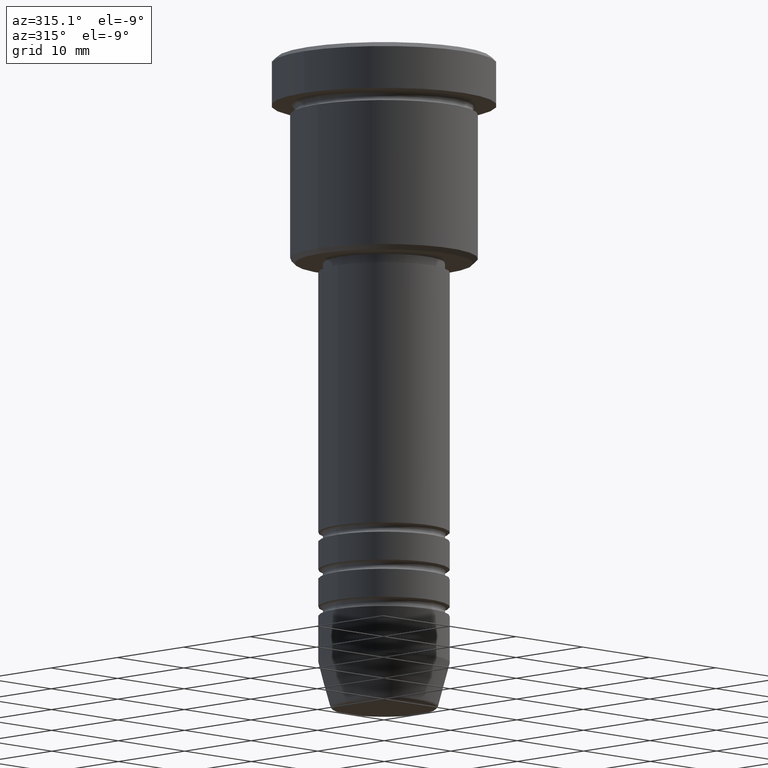
[diagram: clean part render]
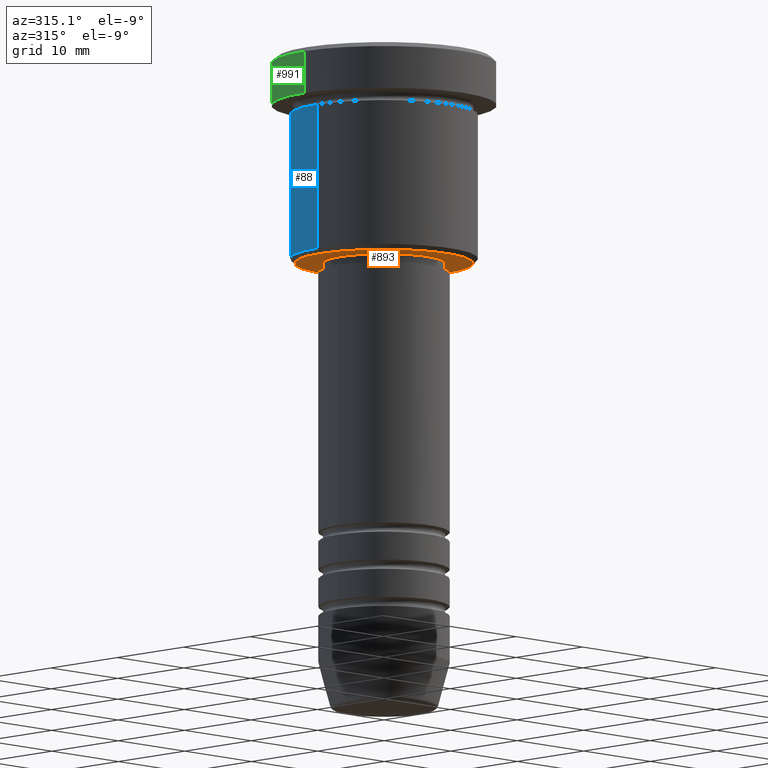
[diagram: same view with three faces highlighted in distinct colors, each labeled with its STEP entity id]
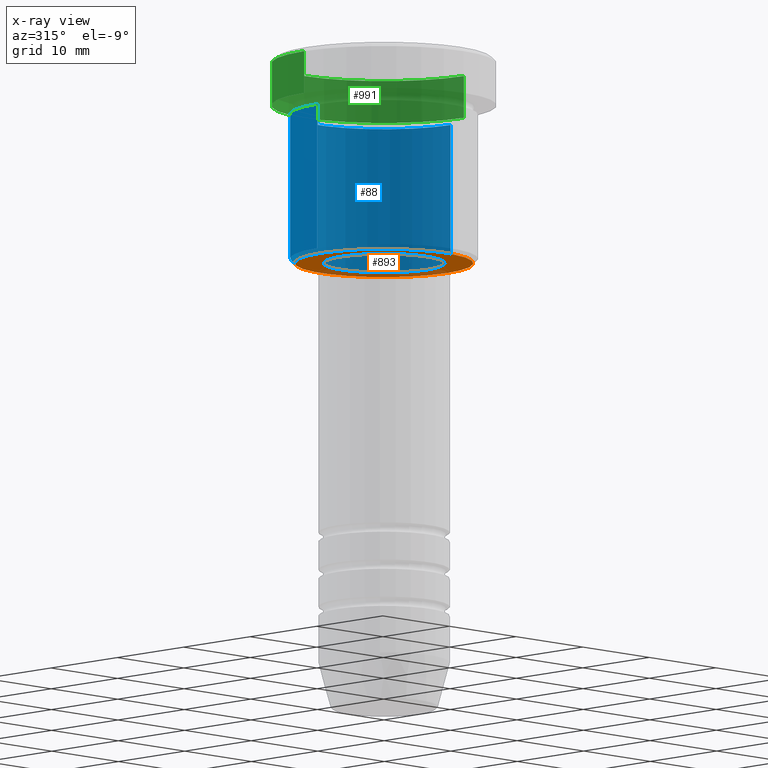
[diagram: x-ray of the same camera — body ghosted, the three highlighted faces saturated]
A machine part, auxiliary view with three faces highlighted in distinct colors.
The next image is the same camera in x-ray (body ghosted, the three faces saturated) — at least one of them is partly hidden behind the body in this view.
Their STEP definitions:

[orange] entity #893 — the highlighted planar face has unit normal (0, 0, -1).
#23 = ORIENTED_EDGE ( 'NONE', *, *, #665, .T. ) ;
#28 = VERTEX_POINT ( 'NONE', #712 ) ;
#34 = DIRECTION ( 'NONE',  ( -1.000000000000000000, 0.000000000000000000, -0.000000000000000000 ) ) ;
#37 = AXIS2_PLACEMENT_3D ( 'NONE', #462, #550, #901 ) ;
#49 = FACE_BOUND ( 'NONE', #1099, .T. ) ;
#381 = CARTESIAN_POINT ( 'NONE',  ( 0.000000000000000000, 0.000000000000000000, -22.00000000000000000 ) ) ;
#390 = AXIS2_PLACEMENT_3D ( 'NONE', #724, #992, #982 ) ;
#415 = ORIENTED_EDGE ( 'NONE', *, *, #542, .T. ) ;
#419 = CARTESIAN_POINT ( 'NONE',  ( 6.500000000000000000, 0.000000000000000000, -22.00000000000000000 ) ) ;
#443 = CIRCLE ( 'NONE', #455, 6.500000000000000000 ) ;
#455 = AXIS2_PLACEMENT_3D ( 'NONE', #574, #1180, #920 ) ;
#456 = DIRECTION ( 'NONE',  ( 0.000000000000000000, 0.000000000000000000, -1.000000000000000000 ) ) ;
#462 = CARTESIAN_POINT ( 'NONE',  ( 0.000000000000000000, 0.000000000000000000, -22.00000000000000000 ) ) ;
#476 = EDGE_LOOP ( 'NONE', ( #415, #858 ) ) ;
#533 = CIRCLE ( 'NONE', #682, 9.499999999999987566 ) ;
#542 = EDGE_CURVE ( 'NONE', #846, #28, #533, .T. ) ;
#550 = DIRECTION ( 'NONE',  ( -0.000000000000000000, -0.000000000000000000, 1.000000000000000000 ) ) ;
#574 = CARTESIAN_POINT ( 'NONE',  ( 0.000000000000000000, 0.000000000000000000, -22.00000000000000000 ) ) ;
#578 = CARTESIAN_POINT ( 'NONE',  ( 9.499999999999987566, 0.000000000000000000, -22.00000000000000000 ) ) ;
#613 = ORIENTED_EDGE ( 'NONE', *, *, #673, .T. ) ;
#665 = EDGE_CURVE ( 'NONE', #905, #830, #798, .T. ) ;
#672 = AXIS2_PLACEMENT_3D ( 'NONE', #1049, #855, #34 ) ;
#673 = EDGE_CURVE ( 'NONE', #830, #905, #443, .T. ) ;
#682 = AXIS2_PLACEMENT_3D ( 'NONE', #381, #456, #1008 ) ;
#712 = CARTESIAN_POINT ( 'NONE',  ( -9.499999999999987566, 1.194030629168668681E-15, -22.00000000000000000 ) ) ;
#724 = CARTESIAN_POINT ( 'NONE',  ( 0.000000000000000000, 0.000000000000000000, -22.00000000000000000 ) ) ;
#798 = CIRCLE ( 'NONE', #37, 6.500000000000000000 ) ;
#830 = VERTEX_POINT ( 'NONE', #915 ) ;
#846 = VERTEX_POINT ( 'NONE', #578 ) ;
#855 = DIRECTION ( 'NONE',  ( 0.000000000000000000, 0.000000000000000000, -1.000000000000000000 ) ) ;
#858 = ORIENTED_EDGE ( 'NONE', *, *, #1060, .T. ) ;
#893 = ADVANCED_FACE ( 'NONE', ( #1141, #49 ), #941, .T. ) ;
#901 = DIRECTION ( 'NONE',  ( 1.000000000000000000, 0.000000000000000000, 0.000000000000000000 ) ) ;
#905 = VERTEX_POINT ( 'NONE', #419 ) ;
#915 = CARTESIAN_POINT ( 'NONE',  ( -6.500000000000000000, 7.960204194457795477E-16, -22.00000000000000000 ) ) ;
#920 = DIRECTION ( 'NONE',  ( 1.000000000000000000, 0.000000000000000000, 0.000000000000000000 ) ) ;
#941 = PLANE ( 'NONE',  #672 ) ;
#982 = DIRECTION ( 'NONE',  ( -1.000000000000000000, 0.000000000000000000, 0.000000000000000000 ) ) ;
#992 = DIRECTION ( 'NONE',  ( 0.000000000000000000, 0.000000000000000000, -1.000000000000000000 ) ) ;
#1008 = DIRECTION ( 'NONE',  ( -1.000000000000000000, 0.000000000000000000, 0.000000000000000000 ) ) ;
#1049 = CARTESIAN_POINT ( 'NONE',  ( 0.000000000000000000, 9.999999999999998224, -22.00000000000000000 ) ) ;
#1060 = EDGE_CURVE ( 'NONE', #28, #846, #1120, .T. ) ;
#1099 = EDGE_LOOP ( 'NONE', ( #23, #613 ) ) ;
#1120 = CIRCLE ( 'NONE', #390, 9.499999999999987566 ) ;
#1141 = FACE_OUTER_BOUND ( 'NONE', #476, .T. ) ;
#1180 = DIRECTION ( 'NONE',  ( -0.000000000000000000, -0.000000000000000000, 1.000000000000000000 ) ) ;

[blue] entity #88 — the highlighted cylindrical surface (partial cylindrical patch) has radius 10 mm, axis along (-0, -0, 1).
#5 = DIRECTION ( 'NONE',  ( -0.000000000000000000, -0.000000000000000000, 1.000000000000000000 ) ) ;
#38 = AXIS2_PLACEMENT_3D ( 'NONE', #87, #1172, #452 ) ;
#73 = VERTEX_POINT ( 'NONE', #615 ) ;
#87 = CARTESIAN_POINT ( 'NONE',  ( 0.000000000000000000, 0.000000000000000000, -6.000000000000000000 ) ) ;
#88 = ADVANCED_FACE ( 'NONE', ( #343 ), #705, .T. ) ;
#109 = LINE ( 'NONE', #284, #1005 ) ;
#123 = ORIENTED_EDGE ( 'NONE', *, *, #827, .T. ) ;
#163 = DIRECTION ( 'NONE',  ( -0.000000000000000000, -0.000000000000000000, 1.000000000000000000 ) ) ;
#199 = DIRECTION ( 'NONE',  ( -0.000000000000000000, -0.000000000000000000, 1.000000000000000000 ) ) ;
#253 = EDGE_LOOP ( 'NONE', ( #123, #973, #337, #984 ) ) ;
#262 = EDGE_CURVE ( 'NONE', #1028, #771, #871, .T. ) ;
#284 = CARTESIAN_POINT ( 'NONE',  ( 9.999999999999998224, 0.000000000000000000, 0.000000000000000000 ) ) ;
#337 = ORIENTED_EDGE ( 'NONE', *, *, #1088, .F. ) ;
#343 = FACE_OUTER_BOUND ( 'NONE', #253, .T. ) ;
#354 = CARTESIAN_POINT ( 'NONE',  ( 9.999999999999998224, 0.000000000000000000, -21.49999999999999645 ) ) ;
#368 = AXIS2_PLACEMENT_3D ( 'NONE', #1183, #5, #655 ) ;
#436 = CARTESIAN_POINT ( 'NONE',  ( -9.999999999999998224, 1.224646799147353059E-15, 0.000000000000000000 ) ) ;
#452 = DIRECTION ( 'NONE',  ( 1.000000000000000000, 0.000000000000000000, 0.000000000000000000 ) ) ;
#458 = CARTESIAN_POINT ( 'NONE',  ( -10.00000000000000000, 1.224646799147353256E-15, -6.000000000000000000 ) ) ;
#527 = CARTESIAN_POINT ( 'NONE',  ( -9.999999999999998224, 1.224646799147353059E-15, -21.49999999999999645 ) ) ;
#528 = VECTOR ( 'NONE', #700, 1000.000000000000000 ) ;
#532 = CARTESIAN_POINT ( 'NONE',  ( 0.000000000000000000, 0.000000000000000000, 0.000000000000000000 ) ) ;
#615 = CARTESIAN_POINT ( 'NONE',  ( 10.00000000000000000, 0.000000000000000000, -6.000000000000000000 ) ) ;
#655 = DIRECTION ( 'NONE',  ( -1.000000000000000000, 0.000000000000000000, 0.000000000000000000 ) ) ;
#700 = DIRECTION ( 'NONE',  ( -0.000000000000000000, -0.000000000000000000, 1.000000000000000000 ) ) ;
#705 = CYLINDRICAL_SURFACE ( 'NONE', #1182, 9.999999999999998224 ) ;
#771 = VERTEX_POINT ( 'NONE', #458 ) ;
#827 = EDGE_CURVE ( 'NONE', #1012, #1028, #874, .T. ) ;
#871 = LINE ( 'NONE', #436, #528 ) ;
#874 = CIRCLE ( 'NONE', #368, 9.999999999999998224 ) ;
#966 = DIRECTION ( 'NONE',  ( 1.000000000000000000, 0.000000000000000000, 0.000000000000000000 ) ) ;
#973 = ORIENTED_EDGE ( 'NONE', *, *, #262, .T. ) ;
#984 = ORIENTED_EDGE ( 'NONE', *, *, #1149, .F. ) ;
#1005 = VECTOR ( 'NONE', #199, 1000.000000000000000 ) ;
#1012 = VERTEX_POINT ( 'NONE', #354 ) ;
#1021 = CIRCLE ( 'NONE', #38, 10.00000000000000000 ) ;
#1028 = VERTEX_POINT ( 'NONE', #527 ) ;
#1088 = EDGE_CURVE ( 'NONE', #73, #771, #1021, .T. ) ;
#1149 = EDGE_CURVE ( 'NONE', #1012, #73, #109, .T. ) ;
#1172 = DIRECTION ( 'NONE',  ( -0.000000000000000000, -0.000000000000000000, 1.000000000000000000 ) ) ;
#1182 = AXIS2_PLACEMENT_3D ( 'NONE', #532, #163, #966 ) ;
#1183 = CARTESIAN_POINT ( 'NONE',  ( 0.000000000000000000, 0.000000000000000000, -21.49999999999999645 ) ) ;

[green] entity #991 — the highlighted cylindrical surface (partial cylindrical patch) has radius 12 mm, axis along (-0, -0, 1).
#11 = VECTOR ( 'NONE', #258, 1000.000000000000000 ) ;
#31 = EDGE_CURVE ( 'NONE', #58, #1075, #269, .T. ) ;
#58 = VERTEX_POINT ( 'NONE', #1148 ) ;
#66 = DIRECTION ( 'NONE',  ( 0.000000000000000000, 0.000000000000000000, -1.000000000000000000 ) ) ;
#90 = ORIENTED_EDGE ( 'NONE', *, *, #31, .T. ) ;
#98 = EDGE_LOOP ( 'NONE', ( #317, #90, #819, #821 ) ) ;
#114 = AXIS2_PLACEMENT_3D ( 'NONE', #1081, #534, #270 ) ;
#147 = CARTESIAN_POINT ( 'NONE',  ( -12.00000000000000000, 1.469576158976823947E-15, 0.000000000000000000 ) ) ;
#161 = CIRCLE ( 'NONE', #976, 12.00000000000000000 ) ;
#258 = DIRECTION ( 'NONE',  ( -0.000000000000000000, -0.000000000000000000, 1.000000000000000000 ) ) ;
#269 = LINE ( 'NONE', #147, #638 ) ;
#270 = DIRECTION ( 'NONE',  ( 1.000000000000000000, 0.000000000000000000, 0.000000000000000000 ) ) ;
#271 = EDGE_CURVE ( 'NONE', #1075, #380, #161, .T. ) ;
#317 = ORIENTED_EDGE ( 'NONE', *, *, #1069, .T. ) ;
#334 = DIRECTION ( 'NONE',  ( -0.000000000000000000, -0.000000000000000000, 1.000000000000000000 ) ) ;
#348 = DIRECTION ( 'NONE',  ( 1.000000000000000000, 0.000000000000000000, 0.000000000000000000 ) ) ;
#380 = VERTEX_POINT ( 'NONE', #881 ) ;
#411 = CARTESIAN_POINT ( 'NONE',  ( 12.00000000000000000, 0.000000000000000000, -5.000000000000000000 ) ) ;
#424 = CYLINDRICAL_SURFACE ( 'NONE', #989, 12.00000000000000000 ) ;
#431 = CARTESIAN_POINT ( 'NONE',  ( 0.000000000000000000, 0.000000000000000000, 0.000000000000000000 ) ) ;
#534 = DIRECTION ( 'NONE',  ( -0.000000000000000000, -0.000000000000000000, 1.000000000000000000 ) ) ;
#548 = CARTESIAN_POINT ( 'NONE',  ( -12.00000000000000000, 1.469576158976823947E-15, -0.4999999999999917843 ) ) ;
#549 = CARTESIAN_POINT ( 'NONE',  ( 12.00000000000000000, 0.000000000000000000, 0.000000000000000000 ) ) ;
#593 = EDGE_CURVE ( 'NONE', #936, #380, #1066, .T. ) ;
#638 = VECTOR ( 'NONE', #334, 1000.000000000000000 ) ;
#703 = DIRECTION ( 'NONE',  ( -0.000000000000000000, -0.000000000000000000, 1.000000000000000000 ) ) ;
#745 = CIRCLE ( 'NONE', #114, 12.00000000000000000 ) ;
#819 = ORIENTED_EDGE ( 'NONE', *, *, #271, .T. ) ;
#821 = ORIENTED_EDGE ( 'NONE', *, *, #593, .F. ) ;
#868 = FACE_OUTER_BOUND ( 'NONE', #98, .T. ) ;
#881 = CARTESIAN_POINT ( 'NONE',  ( 12.00000000000000000, 0.000000000000000000, -0.4999999999999917843 ) ) ;
#936 = VERTEX_POINT ( 'NONE', #411 ) ;
#976 = AXIS2_PLACEMENT_3D ( 'NONE', #1052, #66, #348 ) ;
#989 = AXIS2_PLACEMENT_3D ( 'NONE', #431, #703, #1055 ) ;
#991 = ADVANCED_FACE ( 'NONE', ( #868 ), #424, .T. ) ;
#1052 = CARTESIAN_POINT ( 'NONE',  ( 0.000000000000000000, 0.000000000000000000, -0.4999999999999917843 ) ) ;
#1055 = DIRECTION ( 'NONE',  ( 1.000000000000000000, 0.000000000000000000, 0.000000000000000000 ) ) ;
#1066 = LINE ( 'NONE', #549, #11 ) ;
#1069 = EDGE_CURVE ( 'NONE', #936, #58, #745, .T. ) ;
#1075 = VERTEX_POINT ( 'NONE', #548 ) ;
#1081 = CARTESIAN_POINT ( 'NONE',  ( 0.000000000000000000, 0.000000000000000000, -5.000000000000000000 ) ) ;
#1148 = CARTESIAN_POINT ( 'NONE',  ( -12.00000000000000000, 1.469576158976823947E-15, -5.000000000000000000 ) ) ;